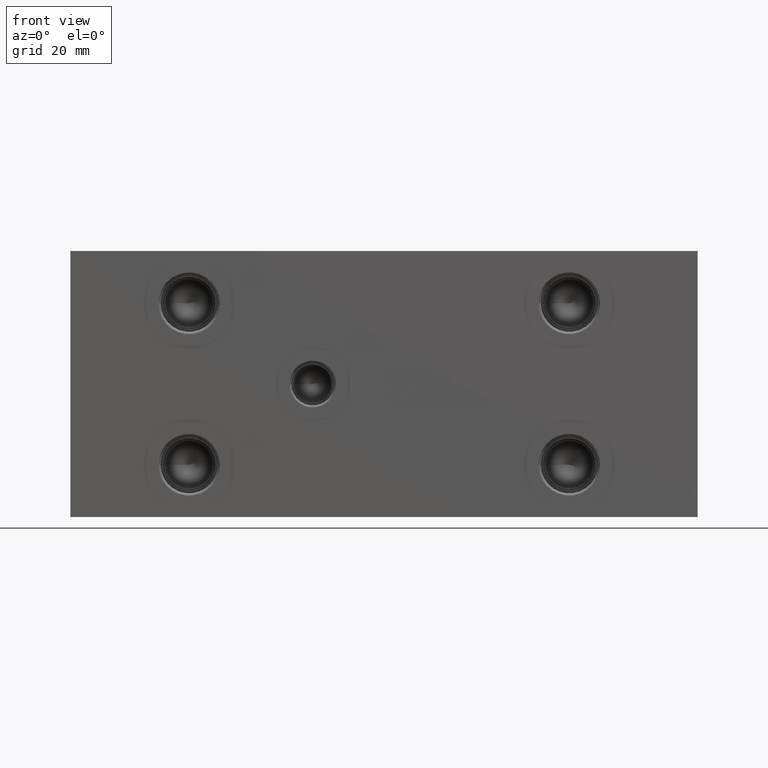
[diagram: clean part render]
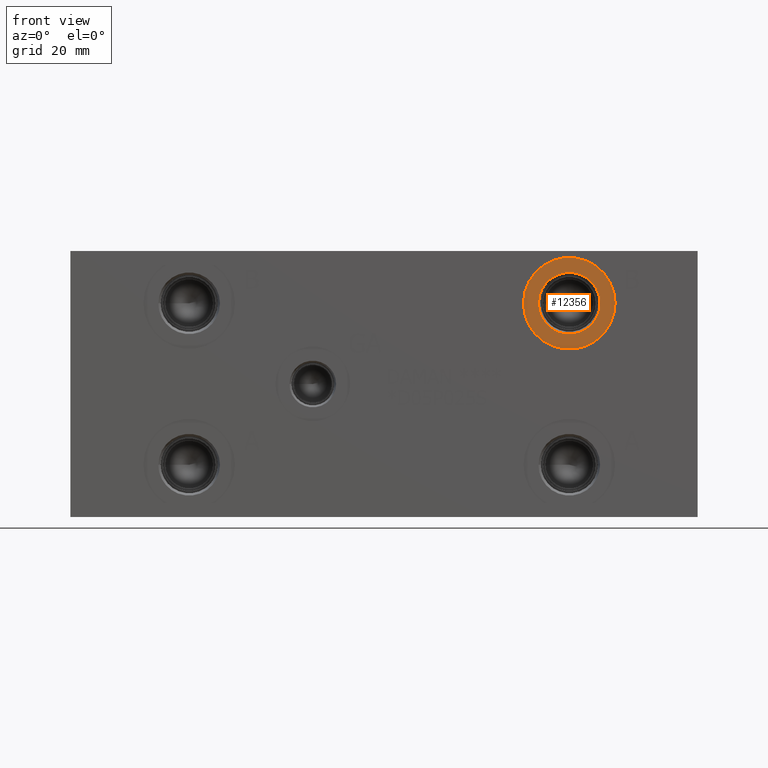
[diagram: same view with one face highlighted and labeled with its STEP entity id]
A machine part, front view. The second image highlights one B-rep face of the part: STEP entity #12356.
In plain terms, the highlighted planar face has unit normal (0, 1, 0).
Its self-contained STEP definition (entity closure, byte-faithful):
#287=CIRCLE('',#12994,15.3162);
#288=CIRCLE('',#12995,15.3162);
#289=CIRCLE('',#12997,10.2997);
#290=CIRCLE('',#12998,10.2997);
#506=FACE_BOUND('',#2143,.T.);
#867=PLANE('',#12996);
#1431=FACE_OUTER_BOUND('',#2142,.T.);
#2142=EDGE_LOOP('',(#10655,#10656));
#2143=EDGE_LOOP('',(#10657,#10658));
#5858=VERTEX_POINT('',#21043);
#5859=VERTEX_POINT('',#21045);
#5860=VERTEX_POINT('',#21049);
#5861=VERTEX_POINT('',#21050);
#7515=EDGE_CURVE('',#5858,#5859,#287,.T.);
#7516=EDGE_CURVE('',#5859,#5858,#288,.T.);
#7517=EDGE_CURVE('',#5860,#5861,#289,.T.);
#7518=EDGE_CURVE('',#5861,#5860,#290,.T.);
#10655=ORIENTED_EDGE('',*,*,#7516,.F.);
#10656=ORIENTED_EDGE('',*,*,#7515,.F.);
#10657=ORIENTED_EDGE('',*,*,#7517,.T.);
#10658=ORIENTED_EDGE('',*,*,#7518,.T.);
#12356=ADVANCED_FACE('',(#1431,#506),#867,.F.);
#12994=AXIS2_PLACEMENT_3D('',#21046,#15327,#15328);
#12995=AXIS2_PLACEMENT_3D('',#21047,#15329,#15330);
#12996=AXIS2_PLACEMENT_3D('',#21048,#15331,#15332);
#12997=AXIS2_PLACEMENT_3D('',#21051,#15333,#15334);
#12998=AXIS2_PLACEMENT_3D('',#21052,#15335,#15336);
#15327=DIRECTION('center_axis',(0.,1.,0.));
#15328=DIRECTION('ref_axis',(1.,0.,0.));
#15329=DIRECTION('center_axis',(0.,1.,0.));
#15330=DIRECTION('ref_axis',(1.,0.,0.));
#15331=DIRECTION('center_axis',(0.,1.,0.));
#15332=DIRECTION('ref_axis',(0.,0.,1.));
#15333=DIRECTION('center_axis',(0.,1.,0.));
#15334=DIRECTION('ref_axis',(1.,0.,0.));
#15335=DIRECTION('center_axis',(0.,1.,0.));
#15336=DIRECTION('ref_axis',(1.,0.,0.));
#21043=CARTESIAN_POINT('',(151.3586,0.7874,71.4248));
#21045=CARTESIAN_POINT('',(181.991,0.7874,71.4248));
#21046=CARTESIAN_POINT('Origin',(166.6748,0.7874,71.4248));
#21047=CARTESIAN_POINT('Origin',(166.6748,0.7874,71.4248));
#21048=CARTESIAN_POINT('Origin',(176.9745,0.7874,71.4248));
#21049=CARTESIAN_POINT('',(176.9745,0.7874,71.4248));
#21050=CARTESIAN_POINT('',(156.3751,0.7874,71.4248));
#21051=CARTESIAN_POINT('Origin',(166.6748,0.7874,71.4248));
#21052=CARTESIAN_POINT('Origin',(166.6748,0.7874,71.4248));